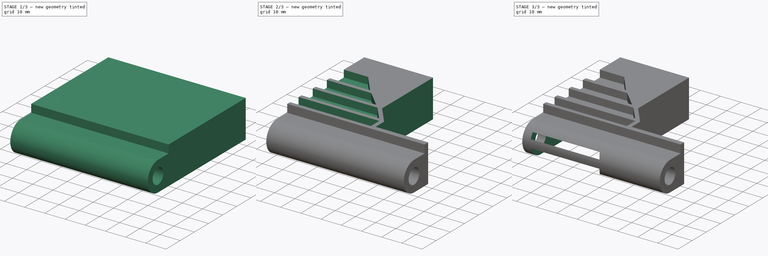
[diagram: build sequence overview — one tinted view per stage of 3, left to right]
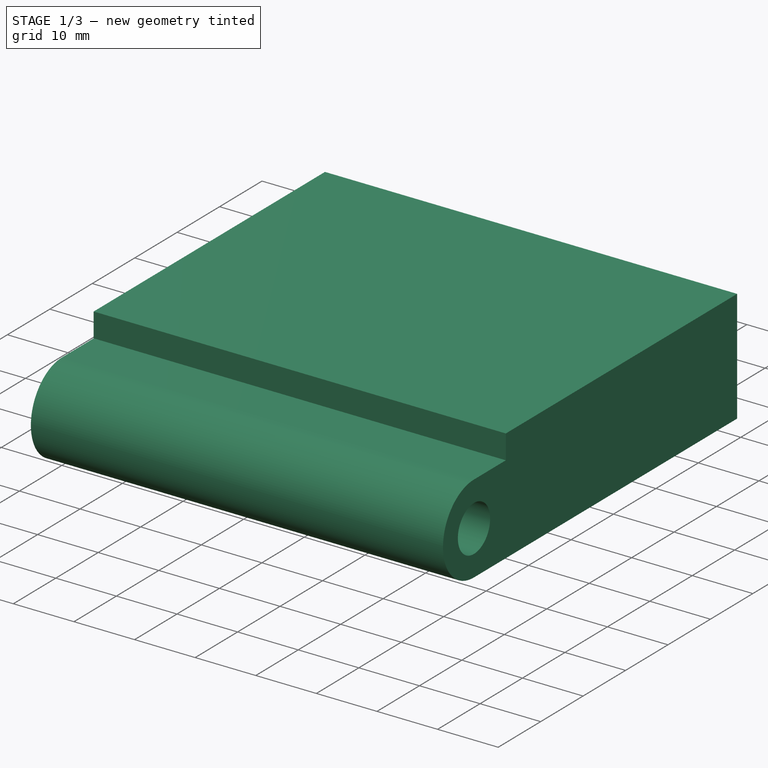
[diagram: stage 1 of 3 — iso view after this stage's code; geometry added in this stage tinted green]
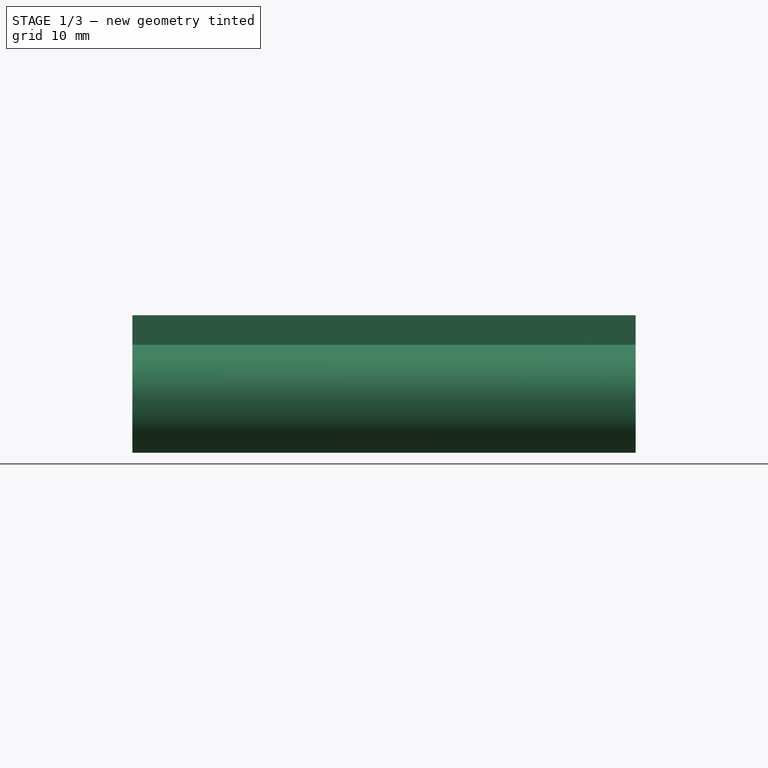
[diagram: stage 1 of 3 — front view after this stage's code; geometry added in this stage tinted green]
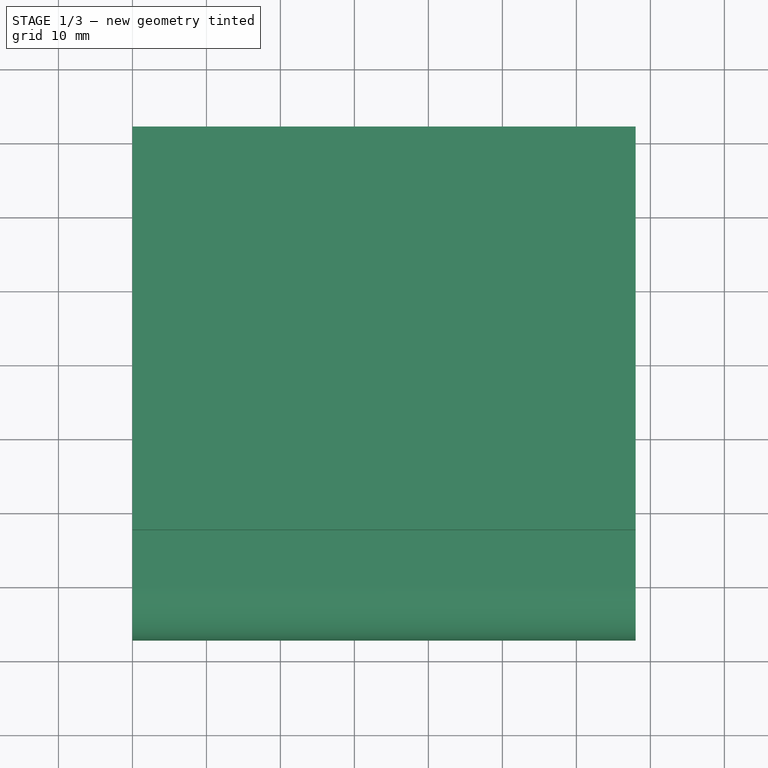
[diagram: stage 1 of 3 — top view after this stage's code; geometry added in this stage tinted green]
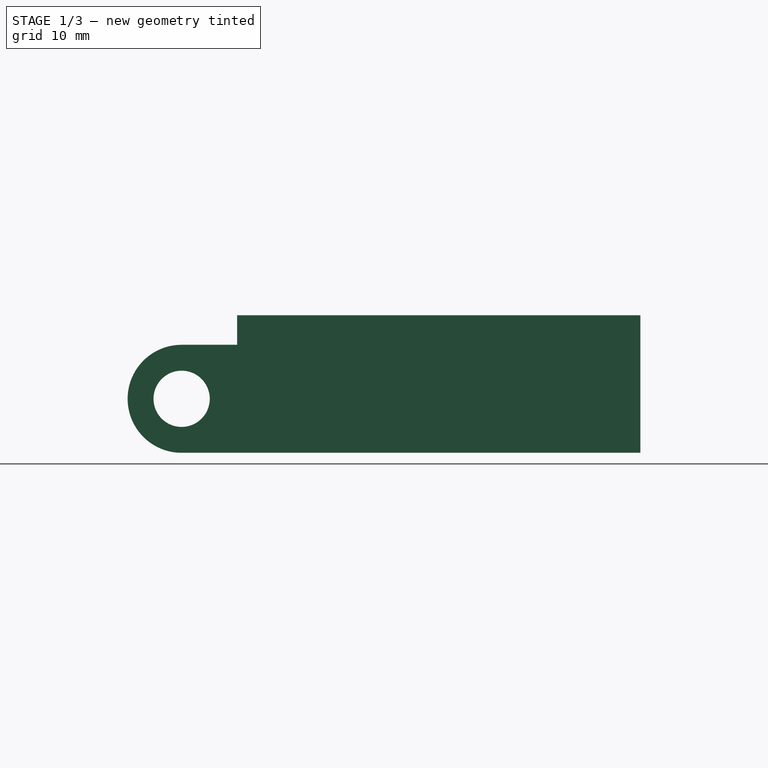
[diagram: stage 1 of 3 — right view after this stage's code; geometry added in this stage tinted green]
FCSTD DOCUMENT  (FreeCAD 0.18R16110 (Git))
Label: carrier4_7.6_benq
License: All rights reserved
LicenseURL: http://en.wikipedia.org/wiki/All_rights_reserved
objects: Sketcher::SketchObject×6, PartDesign::Pocket×5, PartDesign::Pad×1, PartDesign::Body×1
note: 19 computed .brp shape members not serialized (recipe doc carries the construction recipe); baked Part::Feature solids carry a one-line shape summary decoded from their .brp

FEATURE [Sketcher::SketchObject] Sketch
  MapMode = 5
  Placement = pos=(0,0,0) rot=(0.57735,0.57735,0.57735;2.0944rad)
  Support = -> [YZ_Plane]
  sketch-geometry (6):
    g0: ArcOfCircle CenterX=1e-16 CenterY=7.3 CenterZ=0 NormalX=0 NormalY=0 NormalZ=1 AngleXU=0 Radius=7.3 StartAngle=1.5708 EndAngle=4.71239
    g1: LineSegment StartX=0 StartY=0 StartZ=0 EndX=62 EndY=0 EndZ=0
    g2: LineSegment StartX=0 StartY=14.6 StartZ=0 EndX=7.5 EndY=14.6 EndZ=0
    g3: LineSegment StartX=7.5 StartY=14.6 StartZ=0 EndX=7.5 EndY=18.6 EndZ=0
    g4: LineSegment StartX=7.5 StartY=18.6 StartZ=0 EndX=62 EndY=18.6 EndZ=0
    g5: LineSegment StartX=62 StartY=0 StartZ=0 EndX=62 EndY=18.6 EndZ=0
  constraints (18):
    c: Radius(g0) = 7.3
    c: Coincident(g0,g-1)
    c: DistanceX(g1,g1) = 62
    c: Coincident(g0,g1)
    c: DistanceX(g2,g2) = 7.5
    c: Horizontal(g2)
    c: Horizontal(g1)
    c: Coincident(g2,g0)
    c: Angle(g0) = 3.14159
    c: PointOnObject(g0,g-2)
    c: Vertical(g3)
    c: DistanceY(g3,g3) = 4
    c: Coincident(g3,g2)
    c: Horizontal(g4)
    c: Coincident(g4,g3)
    c: Vertical(g5)
    c: Coincident(g5,g1)
    c: Coincident(g5,g4)
FEATURE [PartDesign::Pad] Pad
  Length = 68
  Length2 = 100
  Placement = pos=(0,0,0) rot=(0.57735,0.57735,0.57735;2.0944rad)
  Profile = -> Sketch
  Type = 0
FEATURE [Sketcher::SketchObject] Sketch001
  ExternalGeometry = -> [Pad]
  MapMode = 5
  Placement = pos=(68,-1.5e-14,1.5e-14) rot=(0.57735,0.57735,0.57735;2.0944rad)
  Support = -> [Pad]
  sketch-geometry (1):
    g0: Circle CenterX=0 CenterY=7.3 CenterZ=0 NormalX=0 NormalY=0 NormalZ=1 AngleXU=0 Radius=3.8
  constraints (3):
    c: Radius(g0) = 3.8
    c: PointOnObject(g0,g-2)
    c: DistanceY(g-1,g0) = 7.3
FEATURE [PartDesign::Pocket] Pocket
  BaseFeature = -> Pad
  Length = 5
  Length2 = 100
  Placement = pos=(0,0,0) rot=(0.57735,0.57735,0.57735;2.0944rad)
  Profile = -> Sketch001
  Type = 1
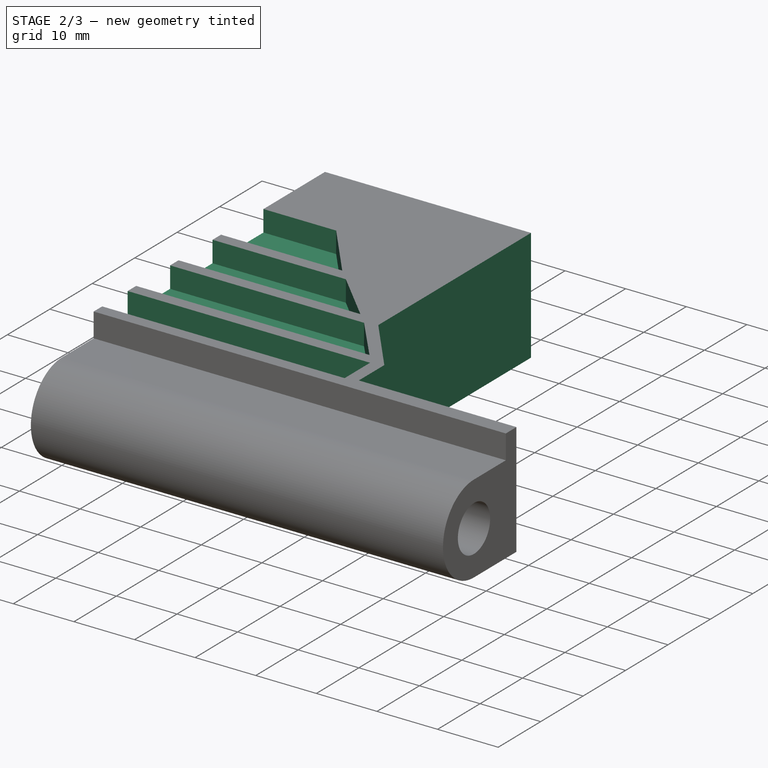
[diagram: stage 2 of 3 — iso view after this stage's code; geometry added in this stage tinted green]
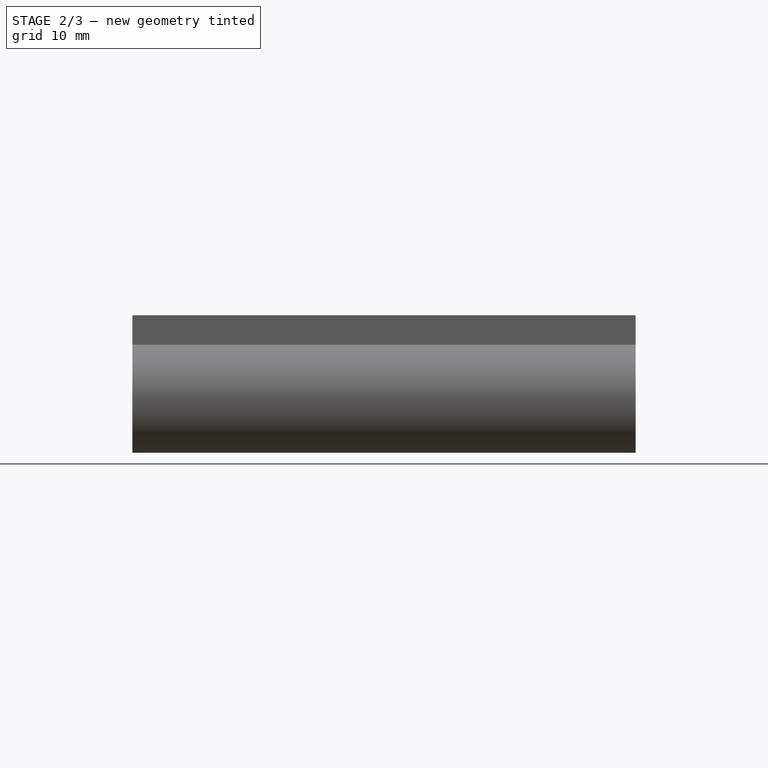
[diagram: stage 2 of 3 — front view after this stage's code; geometry added in this stage tinted green]
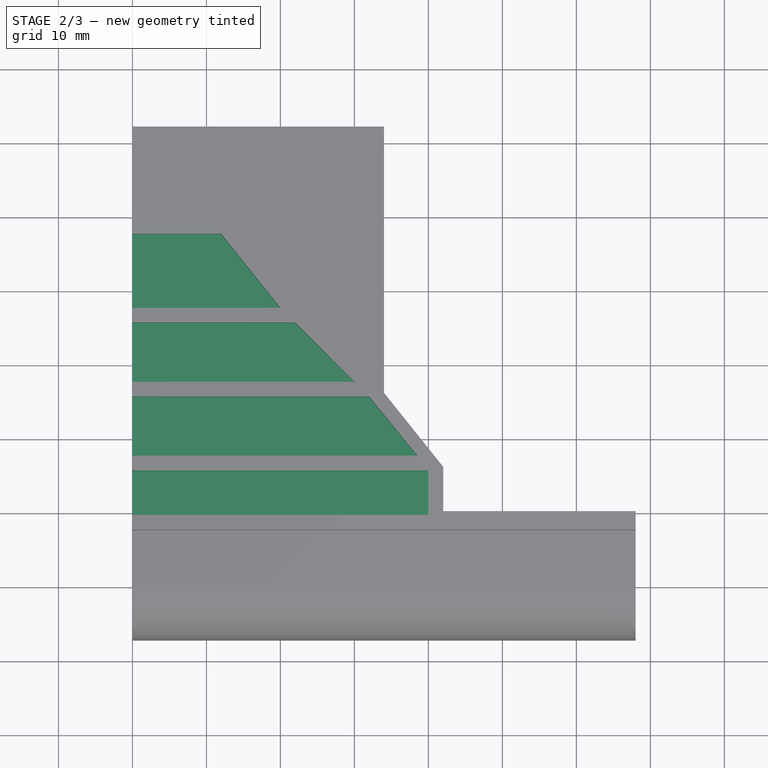
[diagram: stage 2 of 3 — top view after this stage's code; geometry added in this stage tinted green]
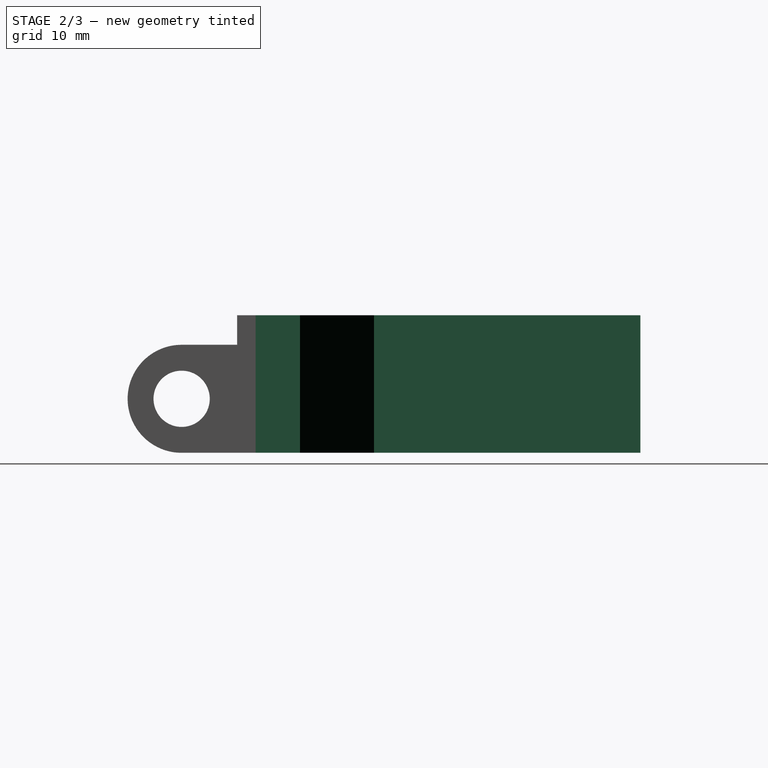
[diagram: stage 2 of 3 — right view after this stage's code; geometry added in this stage tinted green]
FEATURE [Sketcher::SketchObject] Sketch002
  ExternalGeometry = -> [Pocket]
  MapMode = 5
  Placement = pos=(-5.2e-15,8.2e-15,18.6) rot=(0,0,-1;1.5708rad)
  Support = -> [Pocket]
  sketch-geometry (6):
    g0: LineSegment StartX=-62 StartY=34 StartZ=0 EndX=-26 EndY=34 EndZ=0
    g1: LineSegment StartX=-26 StartY=34 StartZ=0 EndX=-16 EndY=42 EndZ=0
    g2: LineSegment StartX=-16 StartY=42 StartZ=0 EndX=-10 EndY=42 EndZ=0
    g3: LineSegment StartX=-10 StartY=42 StartZ=0 EndX=-10 EndY=68 EndZ=0
    g4: LineSegment StartX=-62 StartY=68 StartZ=0 EndX=-10 EndY=68 EndZ=0
    g5: LineSegment StartX=-62 StartY=34 StartZ=0 EndX=-62 EndY=68 EndZ=0
  constraints (17):
    c: Coincident(g1,g0)
    c: Coincident(g2,g1)
    c: Coincident(g3,g2)
    c: Coincident(g4,g3)
    c: Coincident(g5,g4)
    c: Coincident(g5,g0)
    c: Horizontal(g4)
    c: Vertical(g5)
    c: Horizontal(g0)
    c: Vertical(g3)
    c: Horizontal(g2)
    c: DistanceY(g5,g5) = 34
    c: DistanceX(g0,g0) = 36
    c: DistanceX(g2,g2) = 6
    c: DistanceY(g3,g3) = 26
    c: DistanceX(g4,g4) = 52
    c: Coincident(g4,g-3)
FEATURE [PartDesign::Pocket] Pocket001
  BaseFeature = -> Pocket
  Length = 5
  Length2 = 100
  Placement = pos=(0,0,0) rot=(0.57735,0.57735,0.57735;2.0944rad)
  Profile = -> Sketch002
  Type = 1
FEATURE [Sketcher::SketchObject] Sketch003
  ExternalGeometry = -> [Pocket001]
  MapMode = 5
  Placement = pos=(-5.2e-15,8.2e-15,18.6) rot=(0,0,-1;1.5708rad)
  Support = -> [Pocket001]
  sketch-geometry (16):
    g0: LineSegment StartX=-15.5 StartY=0 StartZ=0 EndX=-9.5 EndY=0 EndZ=0
    g1: LineSegment StartX=-9.5 StartY=0 StartZ=0 EndX=-9.5 EndY=40 EndZ=0
    g2: LineSegment StartX=-9.5 StartY=40 StartZ=0 EndX=-15.5 EndY=40 EndZ=0
    g3: LineSegment StartX=-15.5 StartY=40 StartZ=0 EndX=-15.5 EndY=0 EndZ=0
    g4: LineSegment StartX=-25.5 StartY=0 StartZ=0 EndX=-25.5 EndY=32 EndZ=0
    g5: LineSegment StartX=-25.5 StartY=32 StartZ=0 EndX=-17.5 EndY=38.5 EndZ=0
    g6: LineSegment StartX=-17.5 StartY=38.5 StartZ=0 EndX=-17.5 EndY=0 EndZ=0
    g7: LineSegment StartX=-25.5 StartY=0 StartZ=0 EndX=-17.5 EndY=0 EndZ=0
    g8: LineSegment StartX=-35.5 StartY=0 StartZ=0 EndX=-35.5 EndY=22 EndZ=0
    g9: LineSegment StartX=-35.5 StartY=22 StartZ=0 EndX=-27.5 EndY=30 EndZ=0
    g10: LineSegment StartX=-27.5 StartY=30 StartZ=0 EndX=-27.5 EndY=0 EndZ=0
    g11: LineSegment StartX=-27.5 StartY=0 StartZ=0 EndX=-35.5 EndY=0 EndZ=0
    g12: LineSegment StartX=-47.5 StartY=0 StartZ=0 EndX=-47.5 EndY=12 EndZ=0
    g13: LineSegment StartX=-47.5 StartY=12 StartZ=0 EndX=-37.5 EndY=20 EndZ=0
    g14: LineSegment StartX=-37.5 StartY=20 StartZ=0 EndX=-37.5 EndY=0 EndZ=0
    g15: LineSegment StartX=-37.5 StartY=0 StartZ=0 EndX=-47.5 EndY=0 EndZ=0
  constraints (48):
    c: Coincident(g0,g1)
    c: Coincident(g1,g2)
    c: Coincident(g2,g3)
    c: Coincident(g3,g0)
    c: Horizontal(g0)
    c: Horizontal(g2)
    c: Vertical(g1)
    c: Vertical(g3)
    c: DistanceY(g1,g1) = 40
    c: DistanceX(g0,g0) = 6
    c: PointOnObject(g0,g-1)
    c: DistanceX(g0,g-3) = 2
    c: Horizontal(g7)
    c: Vertical(g4)
    c: Vertical(g6)
    c: Coincident(g4,g7)
    c: Coincident(g6,g7)
    c: Coincident(g4,g5)
    c: Coincident(g6,g5)
    c: DistanceY(g4,g4) = 32
    c: DistanceY(g6,g6) = 38.5
    c: DistanceX(g7,g7) = 8
    c: PointOnObject(g6,g-1)
    c: Distance(g0,g6) = 2
    c: Coincident(g8,g9)
    c: Coincident(g9,g10)
    c: Coincident(g10,g11)
    c: Coincident(g8,g11)
    c: Vertical(g8)
    c: Vertical(g10)
    c: Horizontal(g11)
    c: DistanceX(g11,g11) = 8
    c: DistanceY(g10,g10) = 30
    c: DistanceY(g8,g8) = 22
    c: PointOnObject(g10,g-1)
    c: Distance(g4,g10) = 2
    c: Coincident(g12,g13)
    c: Coincident(g13,g14)
    c: Coincident(g14,g15)
    c: Coincident(g15,g12)
    c: Vertical(g14)
    c: Vertical(g12)
    c: Horizontal(g15)
    c: DistanceX(g15,g15) = 10
    c: DistanceY(g14,g14) = 20
    c: DistanceY(g12,g12) = 12
    c: PointOnObject(g14,g-1)
    c: Distance(g8,g14) = 2
FEATURE [PartDesign::Pocket] Pocket002
  BaseFeature = -> Pocket001
  Length = 3.5
  Length2 = 100
  Placement = pos=(0,0,0) rot=(0.57735,0.57735,0.57735;2.0944rad)
  Profile = -> Sketch003
  Type = 0
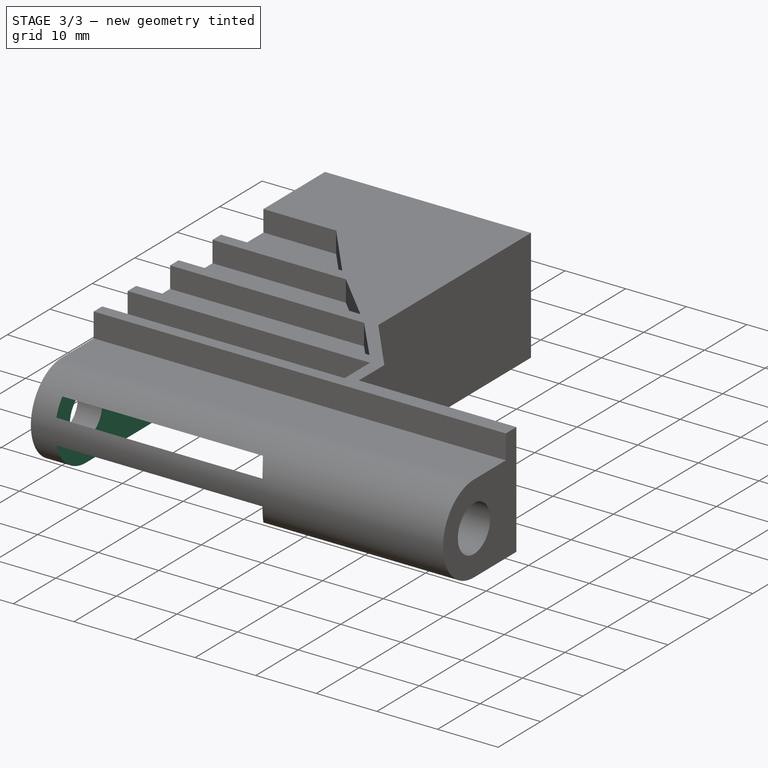
[diagram: stage 3 of 3 — iso view after this stage's code; geometry added in this stage tinted green]
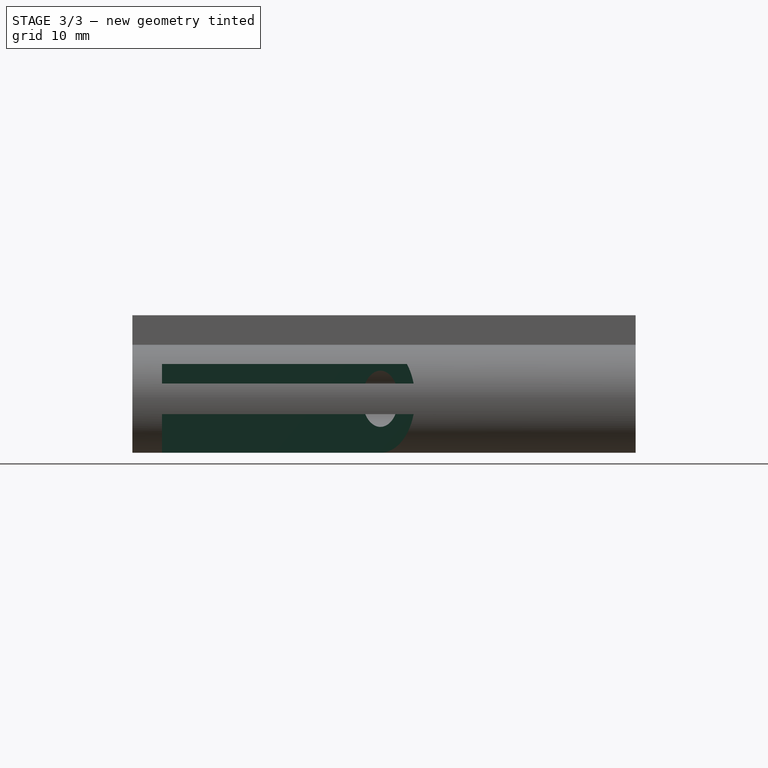
[diagram: stage 3 of 3 — front view after this stage's code; geometry added in this stage tinted green]
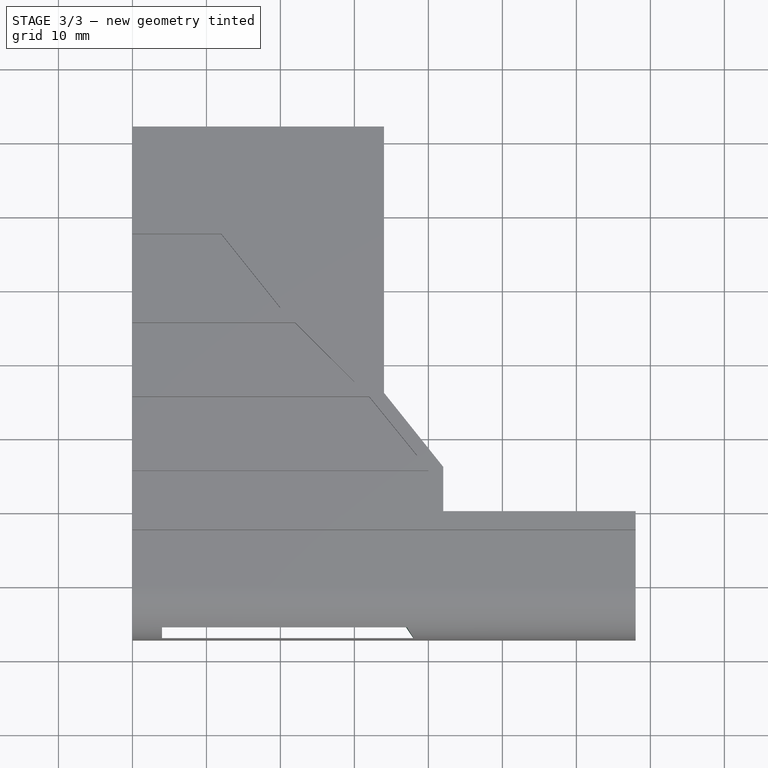
[diagram: stage 3 of 3 — top view after this stage's code; geometry added in this stage tinted green]
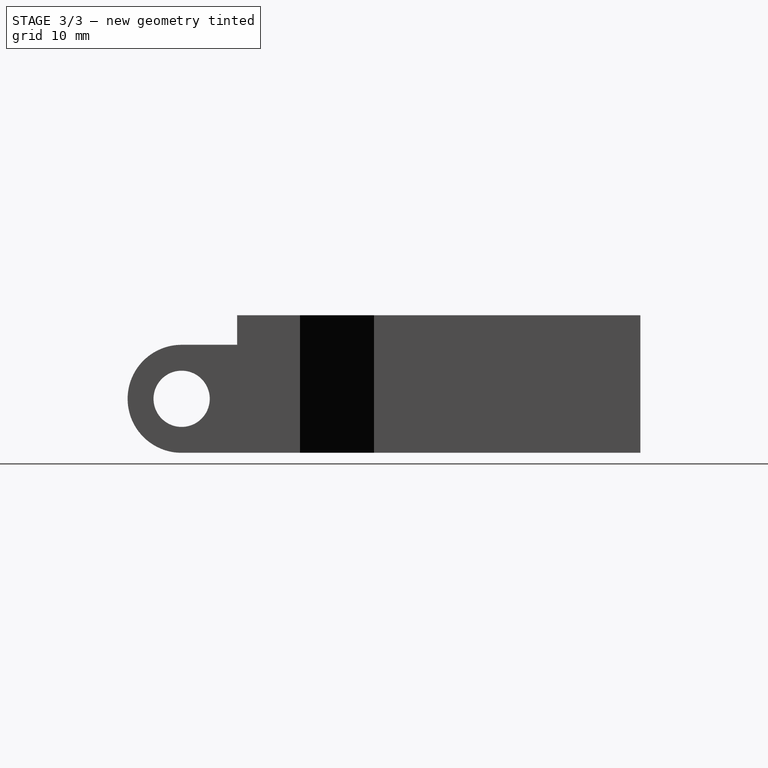
[diagram: stage 3 of 3 — right view after this stage's code; geometry added in this stage tinted green]
FEATURE [Sketcher::SketchObject] Sketch004
  MapMode = 5
  Placement = pos=(0,0,0) rot=(0.707107,0.707107,0;3.14159rad)
  Support = -> [Pocket002]
  sketch-geometry (3):
    g0: LineSegment StartX=-7 StartY=38 StartZ=0 EndX=-7 EndY=4 EndZ=0
    g1: LineSegment StartX=-7 StartY=4 StartZ=0 EndX=46 EndY=4 EndZ=0
    g2: LineSegment StartX=46 StartY=4 StartZ=0 EndX=-7 EndY=38 EndZ=0
  constraints (9):
    c: Coincident(g0,g1)
    c: Coincident(g1,g2)
    c: Coincident(g0,g2)
    c: Vertical(g0)
    c: Horizontal(g1)
    c: DistanceY(g0,g0) = 34
    c: DistanceX(g1,g1) = 53
    c: DistanceX(g0,g-1) = 7
    c: DistanceY(g-1,g0) = 4
FEATURE [PartDesign::Pocket] Pocket003
  BaseFeature = -> Pocket002
  Length = 12
  Length2 = 100
  Placement = pos=(0,0,0) rot=(0.57735,0.57735,0.57735;2.0944rad)
  Profile = -> Sketch004
  Type = 0
FEATURE [Sketcher::SketchObject] Sketch005
  ExternalGeometry = -> [Pocket003]
  MapMode = 5
  Placement = pos=(0,0,0) rot=(0.707107,0.707107,0;3.14159rad)
  Support = -> [Pocket003]
  sketch-geometry (4):
    g0: LineSegment StartX=8 StartY=32 StartZ=0 EndX=62 EndY=32 EndZ=0
    g1: LineSegment StartX=62 StartY=32 StartZ=0 EndX=62 EndY=5 EndZ=0
    g2: LineSegment StartX=62 StartY=5 StartZ=0 EndX=50 EndY=5 EndZ=0
    g3: LineSegment StartX=50 StartY=5 StartZ=0 EndX=8 EndY=32 EndZ=0
  constraints (12):
    c: Coincident(g0,g1)
    c: Coincident(g1,g2)
    c: Coincident(g2,g3)
    c: Coincident(g3,g0)
    c: Horizontal(g0)
    c: Vertical(g1)
    c: Horizontal(g2)
    c: DistanceX(g2,g2) = 12
    c: DistanceX(g0,g0) = 54
    c: DistanceY(g1,g1) = 27
    c: PointOnObject(g1,g-3)
    c: Distance(g1,g-3) = 5
FEATURE [PartDesign::Pocket] Pocket004
  BaseFeature = -> Pocket003
  Length = 14
  Length2 = 100
  Placement = pos=(0,0,0) rot=(0.57735,0.57735,0.57735;2.0944rad)
  Profile = -> Sketch005
  Type = 0
FEATURE [PartDesign::Body] Body
  Group = -> [Sketch,Pad,Sketch001,Pocket,Sketch002,Pocket001,Sketch003,Pocket002,Sketch004,Pocket003,Sketch005,Pocket004]
  Origin = -> Origin
  Tip = -> Pocket004
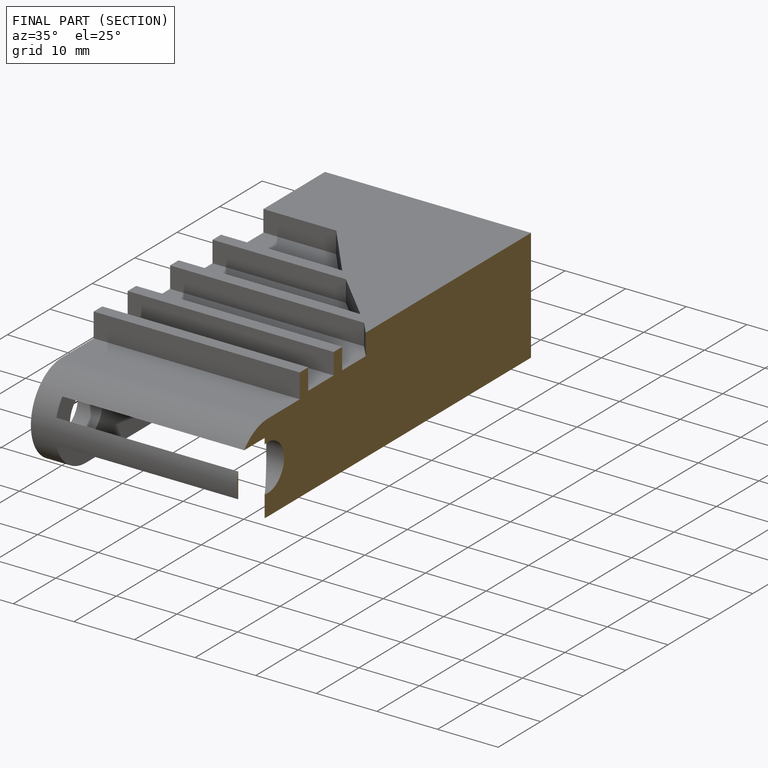
[diagram: finished part — half-section view (interior)]
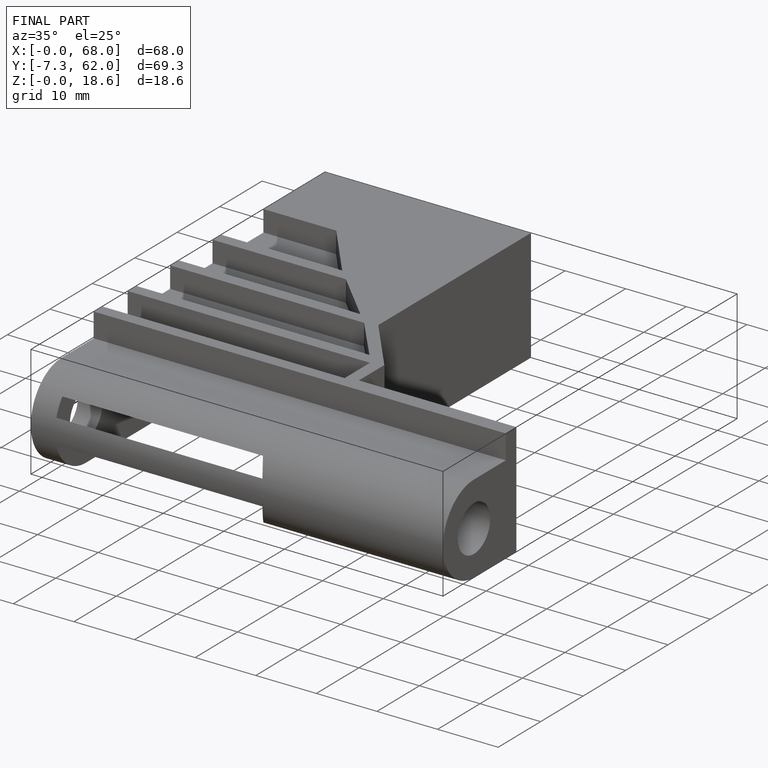
[diagram: finished part — iso view with bounding-box wireframe]
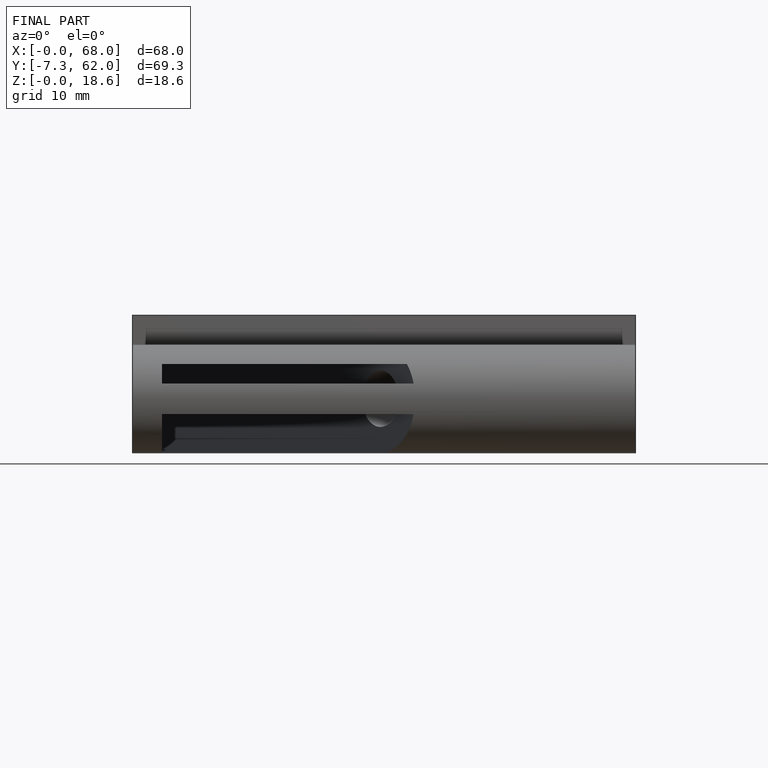
[diagram: finished part — front view with bounding-box wireframe]
